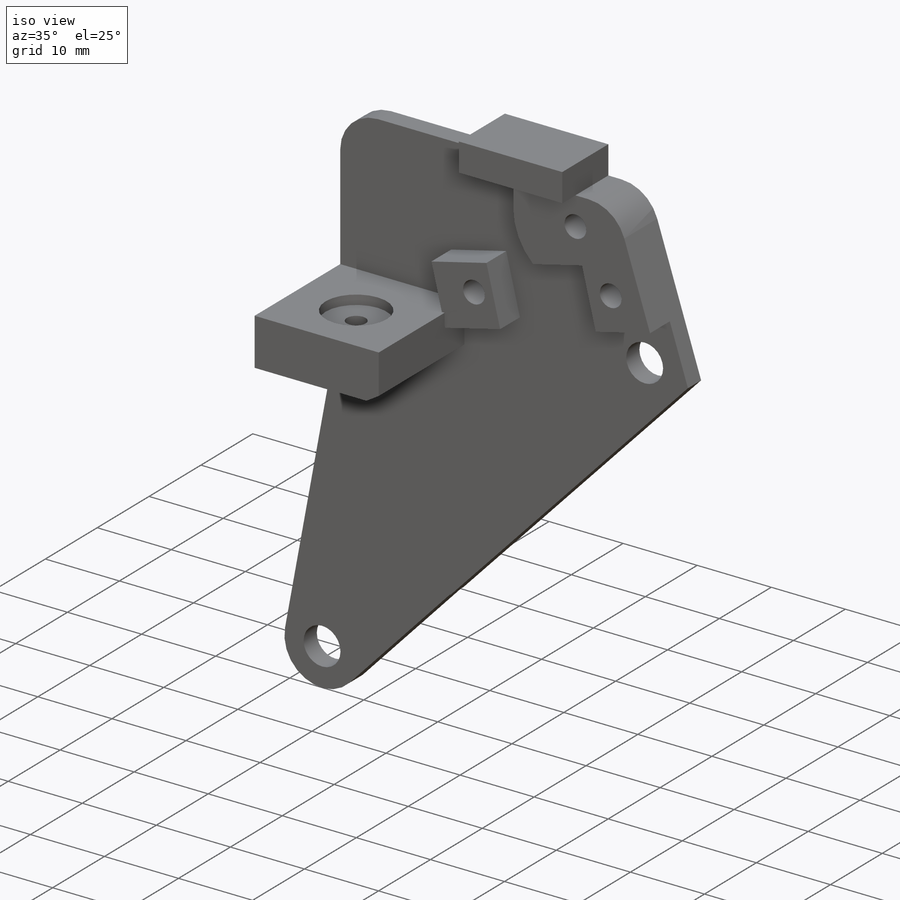
[diagram: iso view]
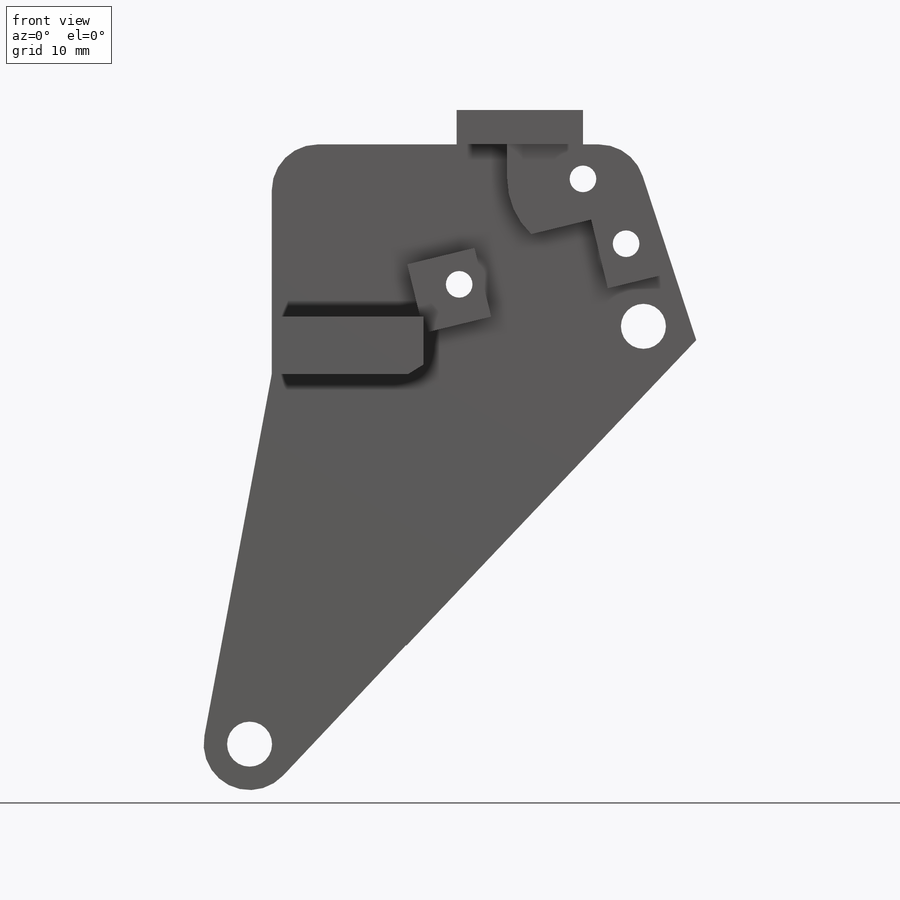
[diagram: front view]
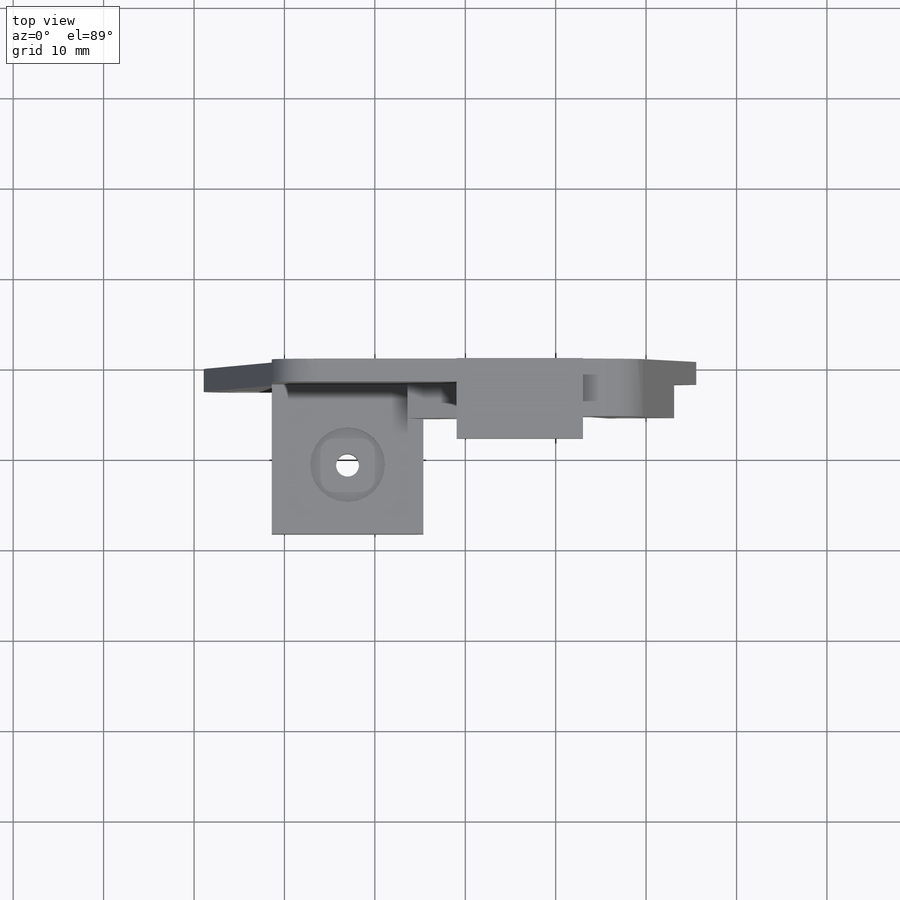
[diagram: top view]
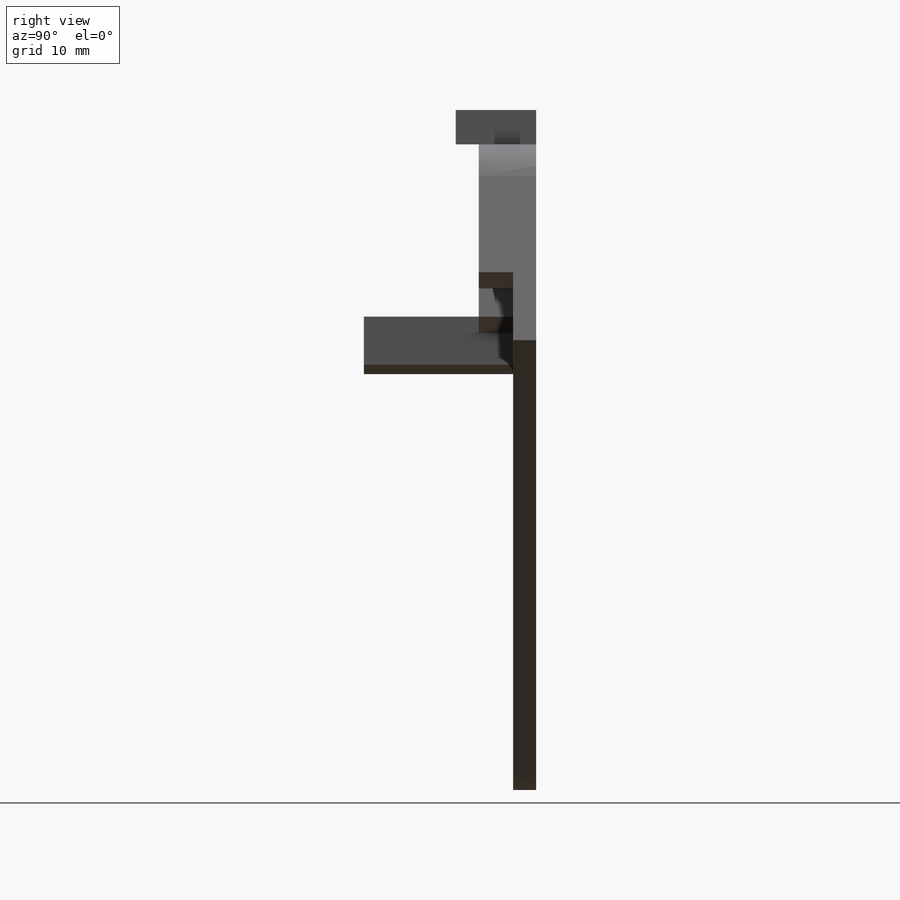
[diagram: right view]
SOLIDWORKS PART (.sldprt)
format: sldprt  version: not decoded by parser v0  size: 1,169,920 bytes
history: native  units: mm
features: sketch x16, extrude x7, cut_extrude x6, material x1, hole x1, fillet x1, mirror x1 (+13 scaffold rows collapsed)
feature tree (46):
  scaffold x13  (default folders/planes/origin — collapsed)
  material  "Material <not specified>"
  sketch  "Sketch1"  dims[D1=0.0mm]
  sketch  "Sketch2"  dims[c1.D1=38.1mm c1.D2=66.04mm c1.D3=82.55mm c1.D5=76.2mm c1.D8=7.62mm c2.D3=66.04mm c2.D4=39.878mm c2.D6=8.382mm c2.D7=25.4mm]
  extrude  "Boss-Extrude1"  Depth=2.54mm
  sketch  "Sketch5"  dims[D1=6.35mm]
  extrude  "Boss-Extrude2"  Depth=16.51mm
  sketch  "Sketch6"  dims[D1=8.255mm 0.4=8.89mm]
  cut_extrude  "Cut-Extrude2"  Depth=1.27mm
  sketch  "Sketch7"  dims[D1=2.54mm]
  cut_extrude  "Cut-Extrude3"  [1 undecoded]
  sketch  "Sketch9"  dims[D1=6.604mm D2=6.604mm D3=6.604mm]
  cut_extrude  "Cut-Extrude4"  Depth=2.286mm
  sketch  "Sketch8"  dims[c1.D2=6.985mm c1.D3=6.985mm c1.D1=0.508mm c1.D4=0.254mm c1.D5=1.016mm c1.D6=1.016mm c2.D4=0.254mm]
  extrude  "Boss-Extrude3"  Depth=3.81mm
  hole  "#4 Clearance Hole1"  Diameter=2.9464mm Depth=6.35mm
  sketch  "Sketch11"
  sketch  "Sketch10"  dims[hole-wizard template sketch: 61 standard entries collapsed; hole parameters above]
  sketch  "Sketch14"  dims[c1.D1=3.81mm c1.D2=1.651mm c2.D1=3.81mm c2.D2=12.7mm c3.D1=3.81mm c3.D2=13.97mm]
  extrude  "Boss-Extrude6"  Depth=6.35mm
  fillet  "Fillet1"  Radius=5.08mm
  sketch  "Sketch15"  dims[c1.D1=~30.57443mm c1.D4=7.62mm c2.D1=4.9784mm c2.D2=5.08mm c2.D3=5.08mm c2.D4=45.9232mm]
  cut_extrude  "Cut-Extrude5"  Depth=2.54mm
  sketch  "Sketch19"  dims[c1.D4=4.9784mm c1.D5=24.892mm c1.D1=~45.922227mm c2.D1=90.0deg c2.D2=~45.922227mm c2.D3=~45.922227mm c3.D3=45.0deg c4.D3=63.5mm c4.D5=5.08mm]
  extrude  "Boss-Extrude8"  [1 undecoded]
  sketch  "Sketch20"
  cut_extrude  "Cut-Extrude8"  Depth=2.54mm
  sketch  "Sketch18"  dims[D1=4.2418mm D2=3.81mm]
  extrude  "Boss-Extrude7"  Depth=3.81mm
  sketch  "Sketch16"  dims[D3=45.9232mm D4=~4.433372mm D1=8.4836mm D2=~43.699913deg]
  cut_extrude  "Cut-Extrude7"  [1 undecoded]
  sketch  "Sketch13"  dims[D1=12.7mm D2=12.7mm D3=12.7mm D4=12.7mm D5=12.7mm D6=12.7mm]
  extrude  "Print Tabs"  Depth=0.4mm
  mirror  "Mirror1"
decode coverage: 26 of 32 modeling features carry decoded parameters
note: ~ marks probable driven/reference dimensions
note: 3 parameter values undecoded
summary: no parameter record found for 3 features
note: suppression state not decoded; provenance and decode notes live in map.json
